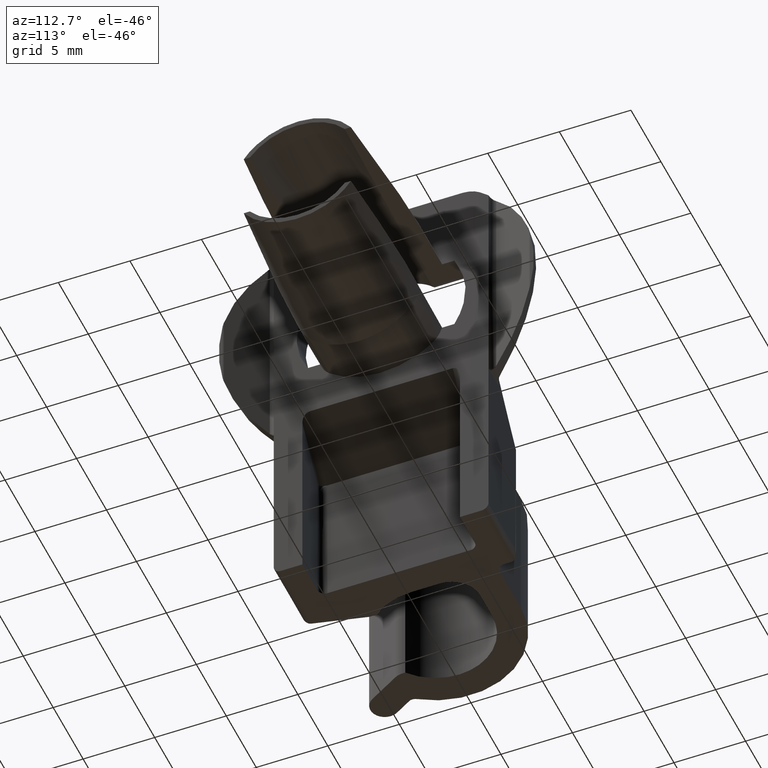
[diagram: clean part render]
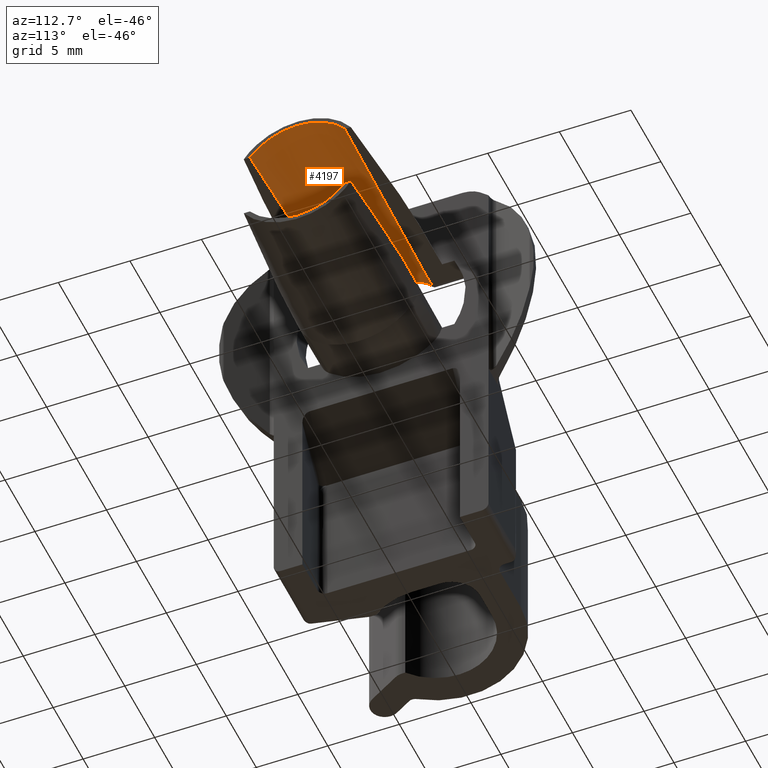
[diagram: same view with one face highlighted and labeled with its STEP entity id]
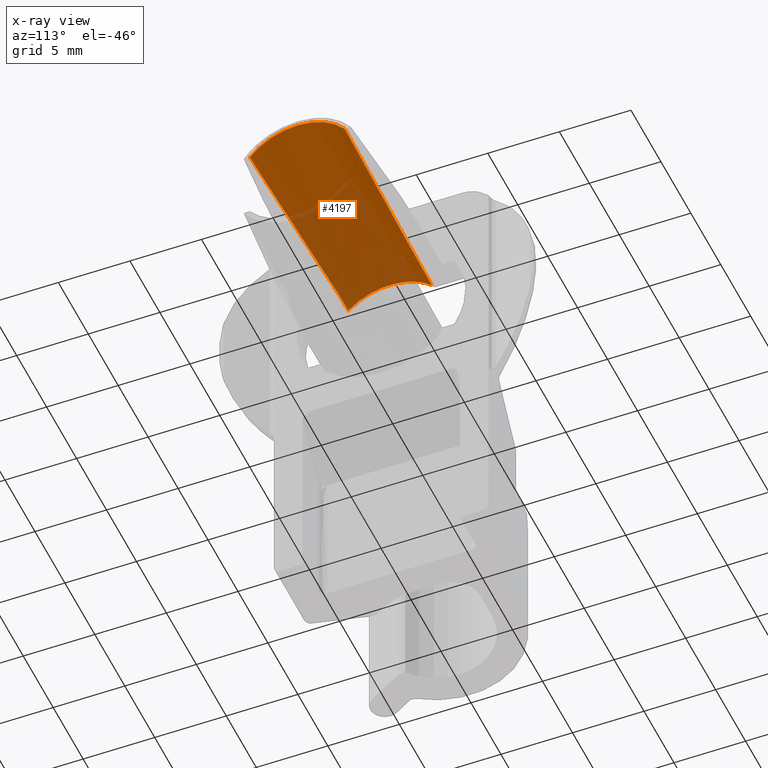
[diagram: x-ray of the same camera — body ghosted, the highlighted face saturated]
A machine part, auxiliary view. The second image highlights one B-rep face of the part: STEP entity #4197.
The next image is the same camera in x-ray: the body ghosted, the highlighted face saturated — about 47% of this face is hidden behind the body in this view.
In plain terms, the highlighted face is a freeform B-spline surface patch.
Its self-contained STEP definition (entity closure, byte-faithful):
#602=CARTESIAN_POINT('',(-1.500000000000055,-2.931483560914855,2.937499639503975));
#603=VERTEX_POINT('',#602);
#654=CARTESIAN_POINT('',(-1.500000000000055,2.931483560914855,2.937499639503975));
#655=VERTEX_POINT('',#654);
#679=CARTESIAN_POINT('',(-1.500000000000055,-2.931483560914854,2.937499639503972));
#680=CARTESIAN_POINT('',(-1.500000000000056,-4.336809E-016,5.862979442921120));
#681=CARTESIAN_POINT('',(-1.500000000000055,2.931483560914853,2.937499639503974));
#689=(BOUNDED_CURVE()B_SPLINE_CURVE(2,(#679,#680,#681),.UNSPECIFIED.,.F.,.U.)CURVE()GEOMETRIC_REPRESENTATION_ITEM()QUASI_UNIFORM_CURVE()RATIONAL_B_SPLINE_CURVE((1.0,0.707831238434693,1.0))REPRESENTATION_ITEM(''));
#690=EDGE_CURVE('',#603,#655,#689,.T.);
#1077=CARTESIAN_POINT('',(0.0,-2.931483560914850,2.937499639503975));
#1078=VERTEX_POINT('',#1077);
#1084=CARTESIAN_POINT('',(14.000000999999999,-3.312476415010450,2.499999999999901));
#1085=VERTEX_POINT('',#1084);
#1086=CARTESIAN_POINT('',(0.0,-2.931483560914850,2.937499639503975));
#1087=CARTESIAN_POINT('',(6.572875697879455,-3.137307275077256,2.732097457866459));
#1088=CARTESIAN_POINT('',(14.000000999999999,-3.312476415010450,2.499999999999901));
#1096=(BOUNDED_CURVE()B_SPLINE_CURVE(2,(#1086,#1087,#1088),.UNSPECIFIED.,.F.,.U.)CURVE()GEOMETRIC_REPRESENTATION_ITEM()QUASI_UNIFORM_CURVE()RATIONAL_B_SPLINE_CURVE((1.0,0.997554263581892,1.0))REPRESENTATION_ITEM(''));
#1097=EDGE_CURVE('',#1078,#1085,#1096,.T.);
#1188=CARTESIAN_POINT('',(14.000000999999999,3.312476415010450,2.499999999999901));
#1189=VERTEX_POINT('',#1188);
#1195=CARTESIAN_POINT('',(0.0,2.931483560914850,2.937499639503975));
#1196=VERTEX_POINT('',#1195);
#1197=CARTESIAN_POINT('',(14.000000999999999,3.312476415010450,2.499999999999901));
#1198=CARTESIAN_POINT('',(6.572875697879371,3.137307275077254,2.732097457866461));
#1199=CARTESIAN_POINT('',(0.0,2.931483560914850,2.937499639503975));
#1207=(BOUNDED_CURVE()B_SPLINE_CURVE(2,(#1197,#1198,#1199),.UNSPECIFIED.,.F.,.U.)CURVE()GEOMETRIC_REPRESENTATION_ITEM()QUASI_UNIFORM_CURVE()RATIONAL_B_SPLINE_CURVE((1.0,0.997554263581822,1.0))REPRESENTATION_ITEM(''));
#1208=EDGE_CURVE('',#1189,#1196,#1207,.T.);
#1390=CARTESIAN_POINT('',(0.0,2.931483560914850,2.937499639503975));
#1391=CARTESIAN_POINT('',(-1.500000000000055,2.931483560914855,2.937499639503975));
#1392=QUASI_UNIFORM_CURVE('',1,(#1390,#1391),.UNSPECIFIED.,.F.,.U.);
#1393=EDGE_CURVE('',#1196,#655,#1392,.T.);
#1419=CARTESIAN_POINT('',(0.0,-2.931483560914850,2.937499639503975));
#1420=CARTESIAN_POINT('',(-1.500000000000055,-2.931483560914855,2.937499639503975));
#1421=QUASI_UNIFORM_CURVE('',1,(#1419,#1420),.UNSPECIFIED.,.F.,.U.);
#1422=EDGE_CURVE('',#1078,#603,#1421,.T.);
#4161=CARTESIAN_POINT('',(14.387501025000001,3.334166624804494,2.470998364637217));
#4162=CARTESIAN_POINT('',(-1.897187525625055,3.334166624804494,2.470998364637217));
#4163=CARTESIAN_POINT('',(14.387501025000001,-0.130045318152464,7.145327577781795));
#4164=CARTESIAN_POINT('',(-1.897187525625056,-0.130045318152464,7.145327577781795));
#4165=CARTESIAN_POINT('',(14.387501025000001,-3.421873328730267,2.348038100654340));
#4166=CARTESIAN_POINT('',(-1.897187525625055,-3.421873328730267,2.348038100654340));
#4174=(BOUNDED_SURFACE()B_SPLINE_SURFACE(1,2,((#4161,#4163,#4165),(#4162,#4164,#4166)),.UNSPECIFIED.,.F.,.F.,.U.)B_SPLINE_SURFACE_WITH_KNOTS((2,2),(3,3),(0.0,16.284688550625059),(0.0,8.549561798368792),.UNSPECIFIED.)GEOMETRIC_REPRESENTATION_ITEM()RATIONAL_B_SPLINE_SURFACE(((1.0,0.580702955710940,1.0),(1.0,0.580702955710940,1.0)))REPRESENTATION_ITEM('')SURFACE());
#4175=ORIENTED_EDGE('',*,*,#1422,.T.);
#4176=ORIENTED_EDGE('',*,*,#690,.T.);
#4177=ORIENTED_EDGE('',*,*,#1393,.F.);
#4178=ORIENTED_EDGE('',*,*,#1208,.F.);
#4179=CARTESIAN_POINT('',(14.000000999999999,3.312476415010451,2.499999999999902));
#4180=CARTESIAN_POINT('',(14.000001000000003,2.067184529668207,4.150000000000001));
#4181=CARTESIAN_POINT('',(14.000000999999999,0.0,4.150000000000000));
#4182=CARTESIAN_POINT('',(14.000001000000003,-2.067184529668205,4.150000000000001));
#4183=CARTESIAN_POINT('',(14.000000999999999,-3.312476415010450,2.499999999999903));
#4191=(BOUNDED_CURVE()B_SPLINE_CURVE(2,(#4179,#4180,#4181,#4182,#4183),.UNSPECIFIED.,.F.,.U.)B_SPLINE_CURVE_WITH_KNOTS((3,2,3),(0.0,0.500000000000000,1.0),.UNSPECIFIED.)CURVE()GEOMETRIC_REPRESENTATION_ITEM()RATIONAL_B_SPLINE_CURVE((1.0,0.895100452059486,1.0,0.895100452059486,1.0))REPRESENTATION_ITEM(''));
#4192=EDGE_CURVE('',#1189,#1085,#4191,.T.);
#4193=ORIENTED_EDGE('',*,*,#4192,.T.);
#4194=ORIENTED_EDGE('',*,*,#1097,.F.);
#4195=EDGE_LOOP('',(#4175,#4176,#4177,#4178,#4193,#4194));
#4196=FACE_OUTER_BOUND('',#4195,.T.);
#4197=ADVANCED_FACE('',(#4196),#4174,.F.);